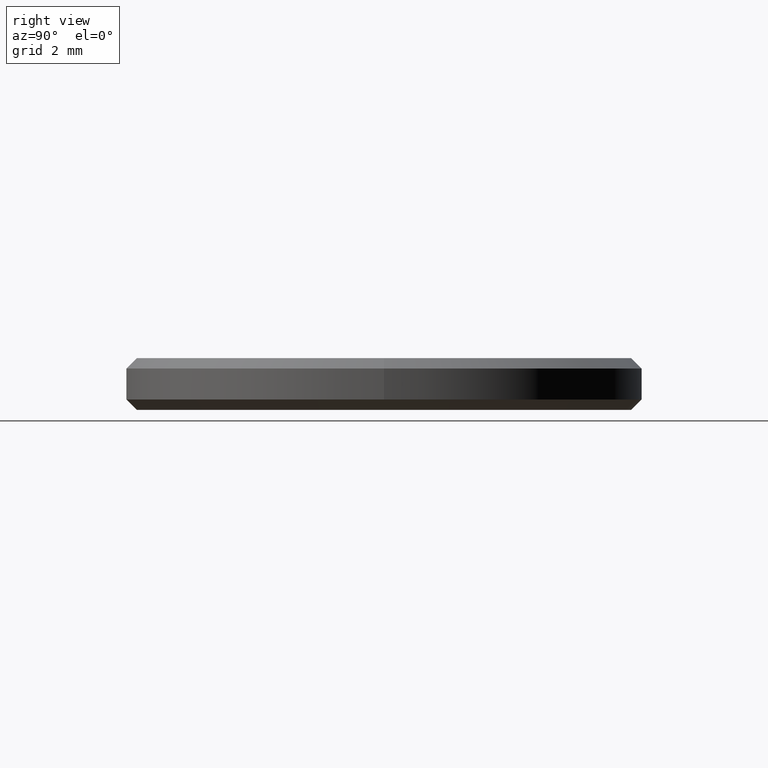
[diagram: clean part render]
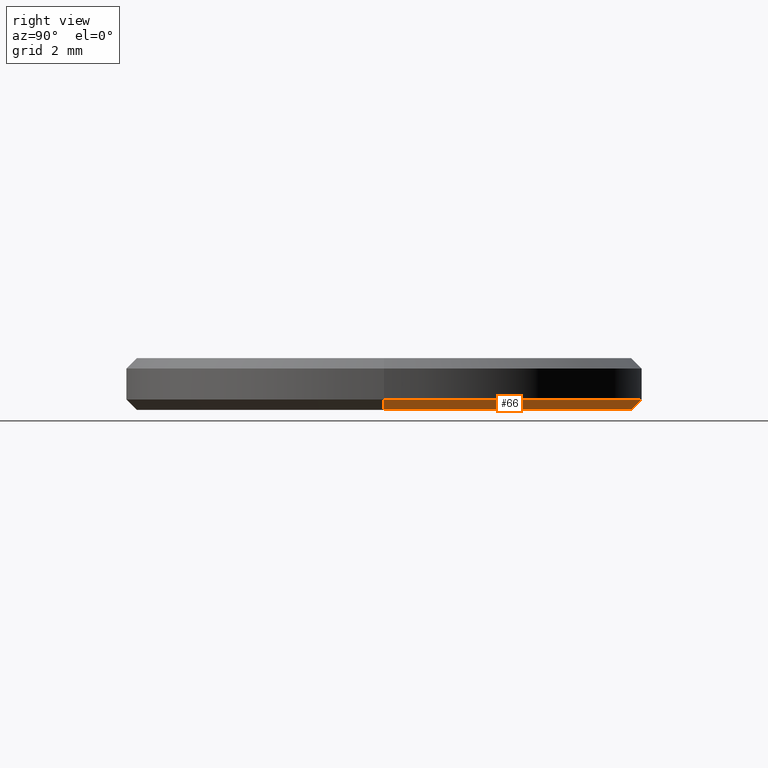
[diagram: same view with one face highlighted and labeled with its STEP entity id]
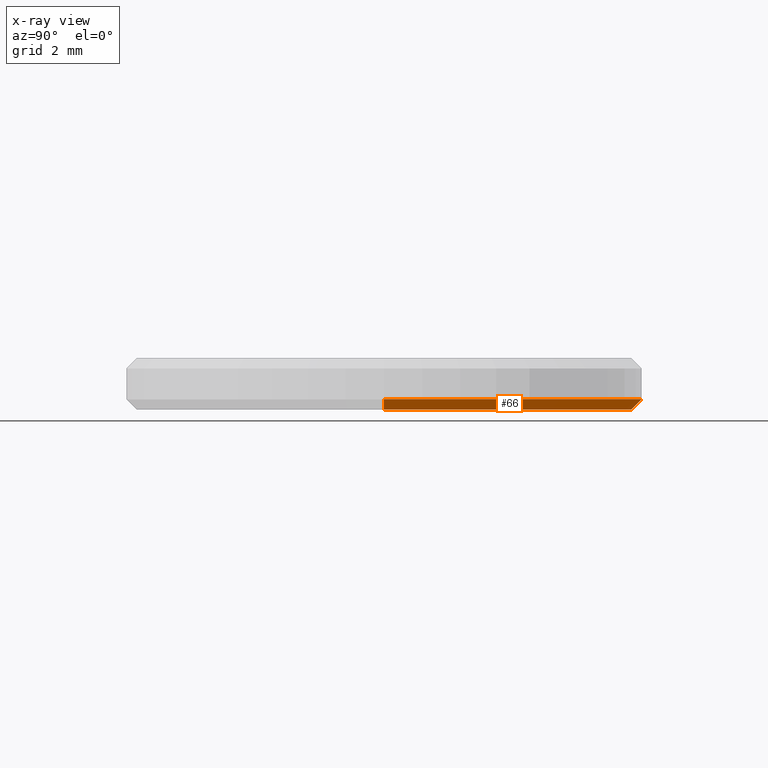
[diagram: x-ray of the same camera — body ghosted, the highlighted face saturated]
A machine part, right view. The second image highlights one B-rep face of the part: STEP entity #66.
The next image is the same camera in x-ray: the body ghosted, the highlighted face saturated — about 0% of this face is hidden behind the body in this view.
In plain terms, the highlighted conical surface has half-angle 45 deg.
Its self-contained STEP definition (entity closure, byte-faithful):
#3 = DIRECTION ( 'NONE',  ( 1.000000000000000000, 0.000000000000000000, 0.000000000000000000 ) ) ;
#18 = CARTESIAN_POINT ( 'NONE',  ( 0.000000000000000000, 0.000000000000000000, 0.1999999999999996503 ) ) ;
#19 = CARTESIAN_POINT ( 'NONE',  ( 4.799999999999999822, 0.000000000000000000, 0.000000000000000000 ) ) ;
#34 = CARTESIAN_POINT ( 'NONE',  ( 0.000000000000000000, 0.000000000000000000, 0.1999999999999996503 ) ) ;
#44 = EDGE_CURVE ( 'NONE', #235, #84, #153, .T. ) ;
#58 = EDGE_LOOP ( 'NONE', ( #71, #128, #175, #150 ) ) ;
#59 = CARTESIAN_POINT ( 'NONE',  ( 0.000000000000000000, 0.000000000000000000, 0.000000000000000000 ) ) ;
#62 = LINE ( 'NONE', #157, #162 ) ;
#65 = CONICAL_SURFACE ( 'NONE', #198, 5.000000000000000000, 0.7853981633974503884 ) ;
#66 = ADVANCED_FACE ( 'NONE', ( #199 ), #65, .T. ) ;
#71 = ORIENTED_EDGE ( 'NONE', *, *, #240, .F. ) ;
#84 = VERTEX_POINT ( 'NONE', #143 ) ;
#88 = AXIS2_PLACEMENT_3D ( 'NONE', #18, #184, #148 ) ;
#98 = CARTESIAN_POINT ( 'NONE',  ( 5.000000000000000000, 0.000000000000000000, 0.1999999999999996503 ) ) ;
#111 = DIRECTION ( 'NONE',  ( -0.000000000000000000, -0.000000000000000000, -1.000000000000000000 ) ) ;
#114 = CARTESIAN_POINT ( 'NONE',  ( 5.000000000000000000, 6.123233995736766282E-16, 0.1999999999999996503 ) ) ;
#115 = CARTESIAN_POINT ( 'NONE',  ( -4.799999999999999822, 6.000769315822029754E-16, 0.000000000000000000 ) ) ;
#119 = DIRECTION ( 'NONE',  ( 0.7071067811865490160, 0.000000000000000000, 0.7071067811865459074 ) ) ;
#125 = CIRCLE ( 'NONE', #223, 4.799999999999999822 ) ;
#128 = ORIENTED_EDGE ( 'NONE', *, *, #185, .T. ) ;
#140 = LINE ( 'NONE', #98, #192 ) ;
#143 = CARTESIAN_POINT ( 'NONE',  ( -5.000000000000000000, 0.000000000000000000, 0.1999999999999996503 ) ) ;
#147 = VERTEX_POINT ( 'NONE', #115 ) ;
#148 = DIRECTION ( 'NONE',  ( 1.000000000000000000, 0.000000000000000000, 0.000000000000000000 ) ) ;
#150 = ORIENTED_EDGE ( 'NONE', *, *, #193, .F. ) ;
#153 = CIRCLE ( 'NONE', #88, 5.000000000000000000 ) ;
#157 = CARTESIAN_POINT ( 'NONE',  ( -5.000000000000000000, 6.123233995736765296E-16, 0.1999999999999996503 ) ) ;
#161 = DIRECTION ( 'NONE',  ( 1.000000000000000000, 0.000000000000000000, 0.000000000000000000 ) ) ;
#162 = VECTOR ( 'NONE', #208, 1000.000000000000000 ) ;
#168 = DIRECTION ( 'NONE',  ( -0.000000000000000000, -0.000000000000000000, 1.000000000000000000 ) ) ;
#175 = ORIENTED_EDGE ( 'NONE', *, *, #44, .F. ) ;
#184 = DIRECTION ( 'NONE',  ( -0.000000000000000000, -0.000000000000000000, 1.000000000000000000 ) ) ;
#185 = EDGE_CURVE ( 'NONE', #147, #84, #62, .T. ) ;
#192 = VECTOR ( 'NONE', #119, 1000.000000000000000 ) ;
#193 = EDGE_CURVE ( 'NONE', #238, #235, #140, .T. ) ;
#198 = AXIS2_PLACEMENT_3D ( 'NONE', #34, #168, #161 ) ;
#199 = FACE_OUTER_BOUND ( 'NONE', #58, .T. ) ;
#208 = DIRECTION ( 'NONE',  ( -0.7071067811865490160, 8.659560562354950115E-17, 0.7071067811865459074 ) ) ;
#223 = AXIS2_PLACEMENT_3D ( 'NONE', #59, #111, #3 ) ;
#235 = VERTEX_POINT ( 'NONE', #114 ) ;
#238 = VERTEX_POINT ( 'NONE', #19 ) ;
#240 = EDGE_CURVE ( 'NONE', #147, #238, #125, .T. ) ;